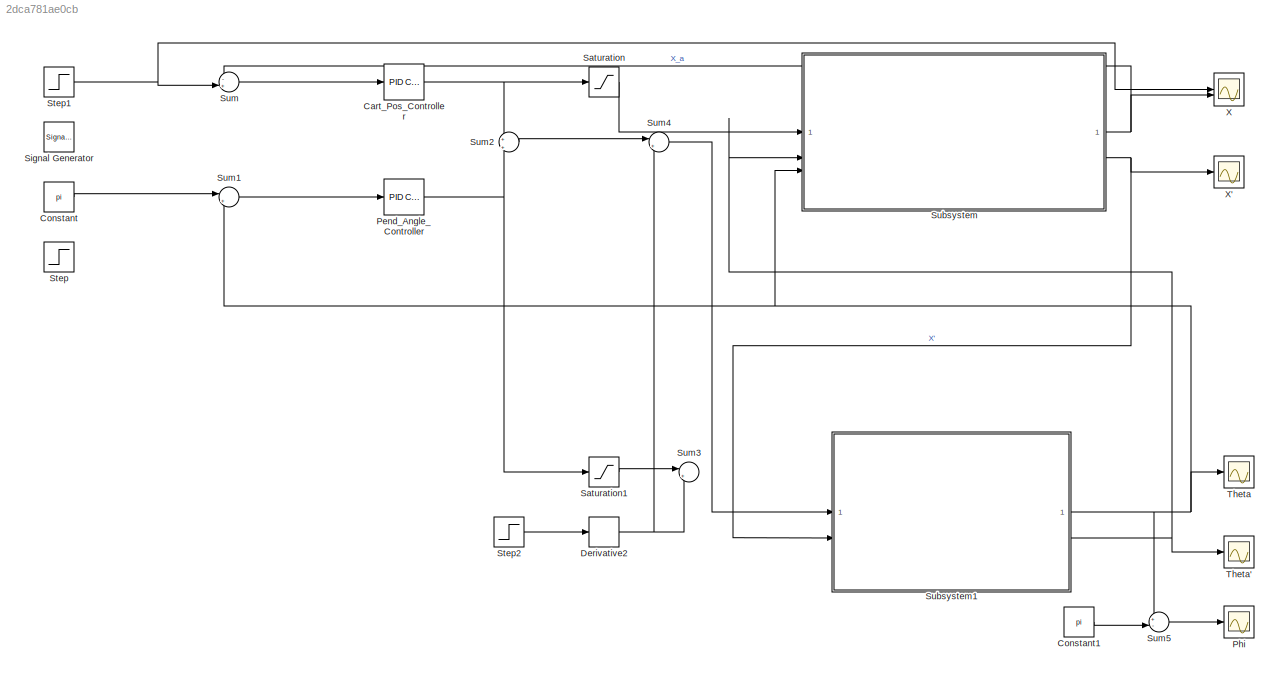
MODEL slx_2dca781ae0cb
KIND model
CONFIG AbsTol = auto
CONFIG EnableMultiTasking = off
CONFIG FixedStep = auto
CONFIG MaxStep = auto
CONFIG MinStep = auto
CONFIG RelTol = 1e-3
CONFIG SampleTimeConstraint = Unconstrained
CONFIG SolverName = VariableStepAuto
CONFIG StartTime = 0.0
CONFIG StopTime = 50
BLOCK [Reference] Cart_Pos_Controller  REF=slpidlib/PID Controller
  LibrarySourceBlock = simulink/Continuous/PID Controller
  SourceBlock = slpidlib/PID Controller
  SourceType = PID 1dof
BLOCK [Constant] Constant
  Value = pi
BLOCK [Constant] Constant1
  Value = pi
BLOCK [Derivative] Derivative2
BLOCK [Reference] Pend_Angle_Controller  REF=slpidlib/PID Controller
  LibrarySourceBlock = simulink/Continuous/PID Controller
  SourceBlock = slpidlib/PID Controller
  SourceType = PID 1dof
BLOCK [Scope] Phi
  Floating = off
  NumInputPorts = 1
  ScopeSpecificationString = Simulink.scopes.TimeScopeBlockCfg('CurrentConfiguration', extmgr.ConfigurationSet(extmgr.Configuration('Core','General UI',true,'FigureColor',[1 1 1]),extmgr.Configuration('Core','Source UI',true),extmgr.Configuration('Sources','WiredSimulink',true,'DataLoggingVariableName','ScopeData1'),extmgr.Configuration('Visuals','Time Domain',true,'SerializedDisplays',{struct('MinYLimReal','-6.52858','MaxYLi...<+1484ch>
BLOCK [Saturate] Saturation
  LowerLimit = -50
  UpperLimit = 50
BLOCK [Saturate] Saturation1
  LowerLimit = -50
  UpperLimit = 50
BLOCK [SignalGenerator] Signal Generator
  Amplitude = 0.5
BLOCK [Step] Step
  SampleTime = 0
BLOCK [Step] Step1
  After = 5
  SampleTime = 0
BLOCK [Step] Step2
  After = 50
  SampleTime = 0
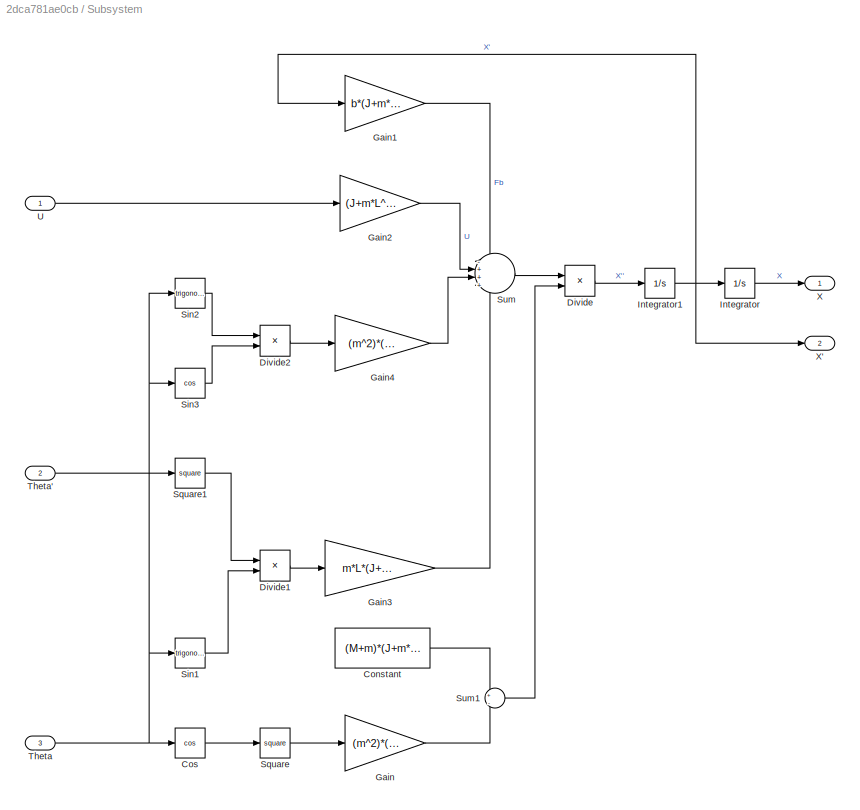
BLOCK [SubSystem] Subsystem
BLOCK [Constant] Subsystem/Constant
  Value = (M+m)*(J+m*L^2)
BLOCK [Trigonometry] Subsystem/Cos
  Operator = cos
BLOCK [Product] Subsystem/Divide
  Inputs = */
BLOCK [Product] Subsystem/Divide1
  Inputs = **
BLOCK [Product] Subsystem/Divide2
  Inputs = **
BLOCK [Gain] Subsystem/Gain
  Gain = (m^2)*(L^2)
BLOCK [Gain] Subsystem/Gain1
  Gain = b*(J+m*L^2)
BLOCK [Gain] Subsystem/Gain2
  Gain = (J+m*L^2)
BLOCK [Gain] Subsystem/Gain3
  Gain = m*L*(J+m*L^2)
BLOCK [Gain] Subsystem/Gain4
  Gain = (m^2)*(L^2)*g
BLOCK [Integrator] Subsystem/Integrator
BLOCK [Integrator] Subsystem/Integrator1
BLOCK [Trigonometry] Subsystem/Sin1
BLOCK [Trigonometry] Subsystem/Sin2
BLOCK [Trigonometry] Subsystem/Sin3
  Operator = cos
BLOCK [Math] Subsystem/Square
  Operator = square
BLOCK [Math] Subsystem/Square1
  Operator = square
BLOCK [Sum] Subsystem/Sum
  Inputs = -+++
BLOCK [Sum] Subsystem/Sum1
  Inputs = +|-
BLOCK [Inport] Subsystem/Theta
  Port = 3
BLOCK [Inport] Subsystem/Theta'
  Port = 2
BLOCK [Inport] Subsystem/U
BLOCK [Outport] Subsystem/X
BLOCK [Outport] Subsystem/X'
  Port = 2
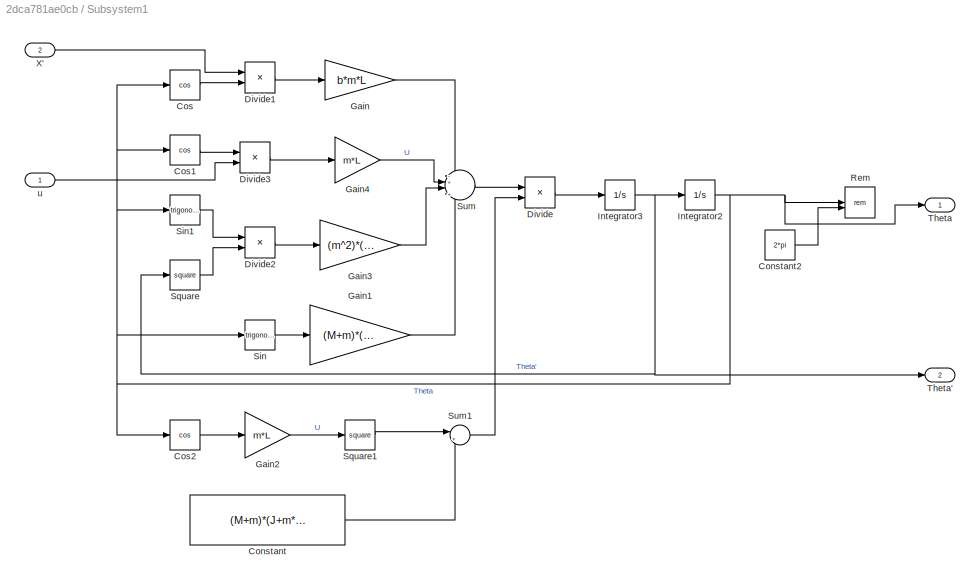
BLOCK [SubSystem] Subsystem1
BLOCK [Constant] Subsystem1/Constant
  Value = (M+m)*(J+m*L^2)
BLOCK [Constant] Subsystem1/Constant2
  Value = 2*pi
BLOCK [Trigonometry] Subsystem1/Cos
  Operator = cos
BLOCK [Trigonometry] Subsystem1/Cos1
  Operator = cos
BLOCK [Trigonometry] Subsystem1/Cos2
  Operator = cos
BLOCK [Product] Subsystem1/Divide
  Inputs = */
BLOCK [Product] Subsystem1/Divide1
  Inputs = **
BLOCK [Product] Subsystem1/Divide2
  Inputs = **
BLOCK [Product] Subsystem1/Divide3
  Inputs = **
BLOCK [Gain] Subsystem1/Gain
  Gain = b*m*L
BLOCK [Gain] Subsystem1/Gain1
  Gain = (M+m)*(m*g*L)
BLOCK [Gain] Subsystem1/Gain2
  Gain = m*L
BLOCK [Gain] Subsystem1/Gain3
  Gain = (m^2)*(L^2)
BLOCK [Gain] Subsystem1/Gain4
  Gain = m*L
BLOCK [Integrator] Subsystem1/Integrator2
BLOCK [Integrator] Subsystem1/Integrator3
BLOCK [Math] Subsystem1/Rem
  Operator = rem
BLOCK [Trigonometry] Subsystem1/Sin
BLOCK [Trigonometry] Subsystem1/Sin1
BLOCK [Math] Subsystem1/Square
  Operator = square
BLOCK [Math] Subsystem1/Square1
  Operator = square
BLOCK [Sum] Subsystem1/Sum
  Inputs = -+|++
BLOCK [Sum] Subsystem1/Sum1
  Inputs = |+-
BLOCK [Outport] Subsystem1/Theta
BLOCK [Outport] Subsystem1/Theta'
  Port = 2
BLOCK [Inport] Subsystem1/X'
  Port = 2
BLOCK [Inport] Subsystem1/u
BLOCK [Sum] Sum
  Inputs = -+|
BLOCK [Sum] Sum1
  Inputs = |+-
BLOCK [Sum] Sum2
  Inputs = +|+
BLOCK [Sum] Sum3
  Inputs = |++
BLOCK [Sum] Sum4
  Inputs = |++
BLOCK [Sum] Sum5
  Inputs = +-|
BLOCK [Scope] Theta
  Floating = off
  NumInputPorts = 1
  ScopeSpecificationString = Simulink.scopes.TimeScopeBlockCfg('CurrentConfiguration', extmgr.ConfigurationSet(extmgr.Configuration('Core','General UI',true,'FigureColor',[1 1 1]),extmgr.Configuration('Core','Source UI',true),extmgr.Configuration('Sources','WiredSimulink',true,'DataLoggingVariableName','ScopeData2'),extmgr.Configuration('Visuals','Time Domain',true,'SerializedDisplays',{struct('MinYLimReal','-12387.78719','Ma...<+1601ch>
BLOCK [Scope] Theta'
  Floating = off
  NumInputPorts = 1
  ScopeSpecificationString = Simulink.scopes.TimeScopeBlockCfg('CurrentConfiguration', extmgr.ConfigurationSet(extmgr.Configuration('Core','General UI',true),extmgr.Configuration('Core','Source UI',true),extmgr.Configuration('Sources','WiredSimulink',true,'DataLoggingVariableName','ScopeData3'),extmgr.Configuration('Visuals','Time Domain',true,'SerializedDisplays',{struct('MinYLimReal','-31.15837','MaxYLimReal','44.79076','YL...<+1383ch>
BLOCK [Scope] X
  Floating = off
  NumInputPorts = 2
  ScopeSpecificationString = Simulink.scopes.TimeScopeBlockCfg('CurrentConfiguration', extmgr.ConfigurationSet(extmgr.Configuration('Core','General UI',true,'FigureColor',[1 1 1]),extmgr.Configuration('Core','Source UI',true),extmgr.Configuration('Sources','WiredSimulink',true,'DataLoggingVariableName','ScopeData4'),extmgr.Configuration('Visuals','Time Domain',true,'SerializedDisplays',{struct('MinYLimReal','-451148.42774','M...<+1588ch>
BLOCK [Scope] X'
  Floating = off
  NumInputPorts = 1
  ScopeSpecificationString = Simulink.scopes.TimeScopeBlockCfg('CurrentConfiguration', extmgr.ConfigurationSet(extmgr.Configuration('Core','General UI',true),extmgr.Configuration('Core','Source UI',true),extmgr.Configuration('Sources','WiredSimulink',true),extmgr.Configuration('Visuals','Time Domain',true,'SerializedDisplays',{struct('MinYLimReal','-0.30346','MaxYLimReal','2.73114','YLabelReal','','MinYLimMag','0.00000','MaxY...<+1323ch>
NET Cart_Pos_Controller:1 -> Saturation:1, Sum2:1
LINE Constant1:1 -> Sum5:2
LINE Constant:1 -> Sum1:1
NET Derivative2:1 -> Sum3:2, Sum4:2
NET Pend_Angle_Controller:1 -> Saturation1:1, Sum2:2
LINE Saturation1:1 -> Sum3:1
LINE Saturation:1 -> Subsystem:1
NET Step1:1 -> Sum:2, X:1
LINE Step2:1 -> Derivative2:1
LINE Subsystem/Constant:1 -> Subsystem/Sum1:1
LINE Subsystem/Cos:1 -> Subsystem/Square:1
LINE Subsystem/Divide1:1 -> Subsystem/Gain3:1
LINE Subsystem/Divide2:1 -> Subsystem/Gain4:1
LINE Subsystem/Divide:1 -> Subsystem/Integrator1:1
LINE Subsystem/Gain1:1 -> Subsystem/Sum:1
LINE Subsystem/Gain2:1 -> Subsystem/Sum:2
LINE Subsystem/Gain3:1 -> Subsystem/Sum:4
LINE Subsystem/Gain4:1 -> Subsystem/Sum:3
LINE Subsystem/Gain:1 -> Subsystem/Sum1:2
NET Subsystem/Integrator1:1 -> Subsystem/Gain1:1, Subsystem/Integrator:1, Subsystem/X':1
LINE Subsystem/Integrator:1 -> Subsystem/X:1
LINE Subsystem/Sin1:1 -> Subsystem/Divide1:2
LINE Subsystem/Sin2:1 -> Subsystem/Divide2:1
LINE Subsystem/Sin3:1 -> Subsystem/Divide2:2
LINE Subsystem/Square1:1 -> Subsystem/Divide1:1
LINE Subsystem/Square:1 -> Subsystem/Gain:1
LINE Subsystem/Sum1:1 -> Subsystem/Divide:2
LINE Subsystem/Sum:1 -> Subsystem/Divide:1
LINE Subsystem/Theta':1 -> Subsystem/Square1:1
NET Subsystem/Theta:1 -> Subsystem/Cos:1, Subsystem/Sin1:1, Subsystem/Sin2:1, Subsystem/Sin3:1
LINE Subsystem/U:1 -> Subsystem/Gain2:1
LINE Subsystem1/Constant2:1 -> Subsystem1/Rem:2
LINE Subsystem1/Constant:1 -> Subsystem1/Sum1:2
LINE Subsystem1/Cos1:1 -> Subsystem1/Divide3:1
LINE Subsystem1/Cos2:1 -> Subsystem1/Gain2:1
LINE Subsystem1/Cos:1 -> Subsystem1/Divide1:2
LINE Subsystem1/Divide1:1 -> Subsystem1/Gain:1
LINE Subsystem1/Divide2:1 -> Subsystem1/Gain3:1
LINE Subsystem1/Divide3:1 -> Subsystem1/Gain4:1
LINE Subsystem1/Divide:1 -> Subsystem1/Integrator3:1
LINE Subsystem1/Gain1:1 -> Subsystem1/Sum:4
LINE Subsystem1/Gain2:1 -> Subsystem1/Square1:1
LINE Subsystem1/Gain3:1 -> Subsystem1/Sum:3
LINE Subsystem1/Gain4:1 -> Subsystem1/Sum:2
LINE Subsystem1/Gain:1 -> Subsystem1/Sum:1
NET Subsystem1/Integrator2:1 -> Subsystem1/Cos1:1, Subsystem1/Cos2:1, Subsystem1/Cos:1, Subsystem1/Rem:1, Subsystem1/Sin1:1, Subsystem1/Sin:1, Subsystem1/Theta:1
NET Subsystem1/Integrator3:1 -> Subsystem1/Integrator2:1, Subsystem1/Square:1, Subsystem1/Theta':1
LINE Subsystem1/Sin1:1 -> Subsystem1/Divide2:1
LINE Subsystem1/Sin:1 -> Subsystem1/Gain1:1
LINE Subsystem1/Square1:1 -> Subsystem1/Sum1:1
LINE Subsystem1/Square:1 -> Subsystem1/Divide2:2
LINE Subsystem1/Sum1:1 -> Subsystem1/Divide:2
LINE Subsystem1/Sum:1 -> Subsystem1/Divide:1
LINE Subsystem1/X':1 -> Subsystem1/Divide1:1
LINE Subsystem1/u:1 -> Subsystem1/Divide3:2
NET Subsystem1:1 -> Subsystem:3, Sum1:2, Sum5:1, Theta:1
NET Subsystem1:2 -> Subsystem:2, Theta':1
NET Subsystem:1 -> Sum:1, X:2
NET Subsystem:2 -> Subsystem1:2, X':1
LINE Sum1:1 -> Pend_Angle_Controller:1
LINE Sum2:1 -> Sum4:1
LINE Sum4:1 -> Subsystem1:1
LINE Sum5:1 -> Phi:1
LINE Sum:1 -> Cart_Pos_Controller:1
note: NET lines group one-source signal fan-out (src -> all destinations, sorted); 1:1 wires keep LINE
